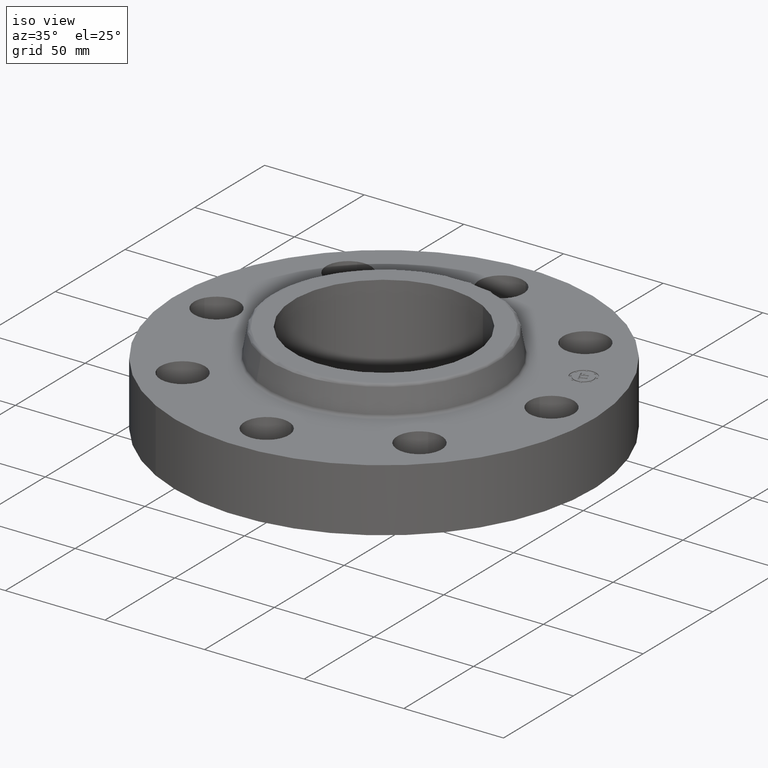
[diagram: clean part render]
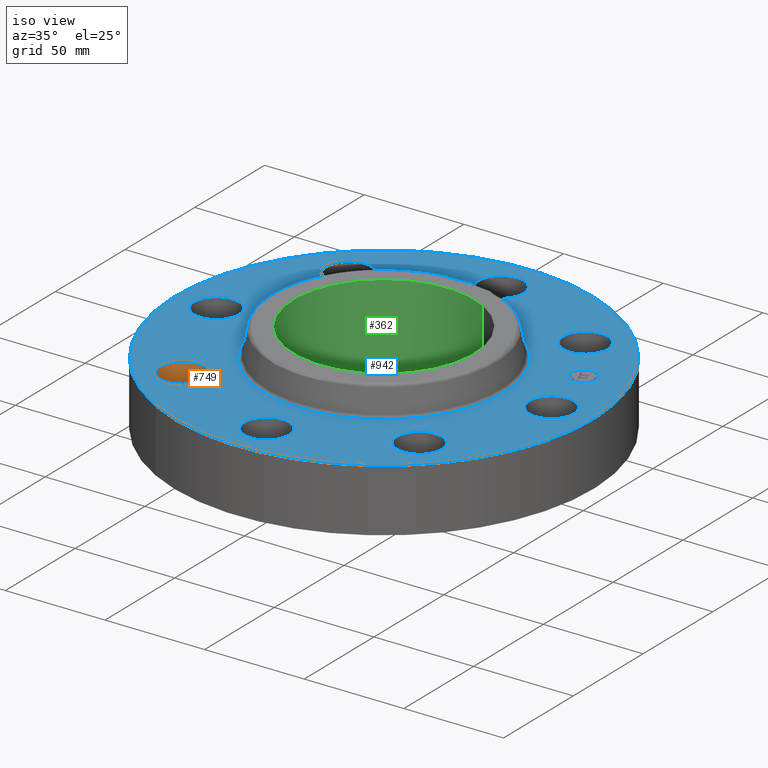
[diagram: same view with three faces highlighted in distinct colors, each labeled with its STEP entity id]
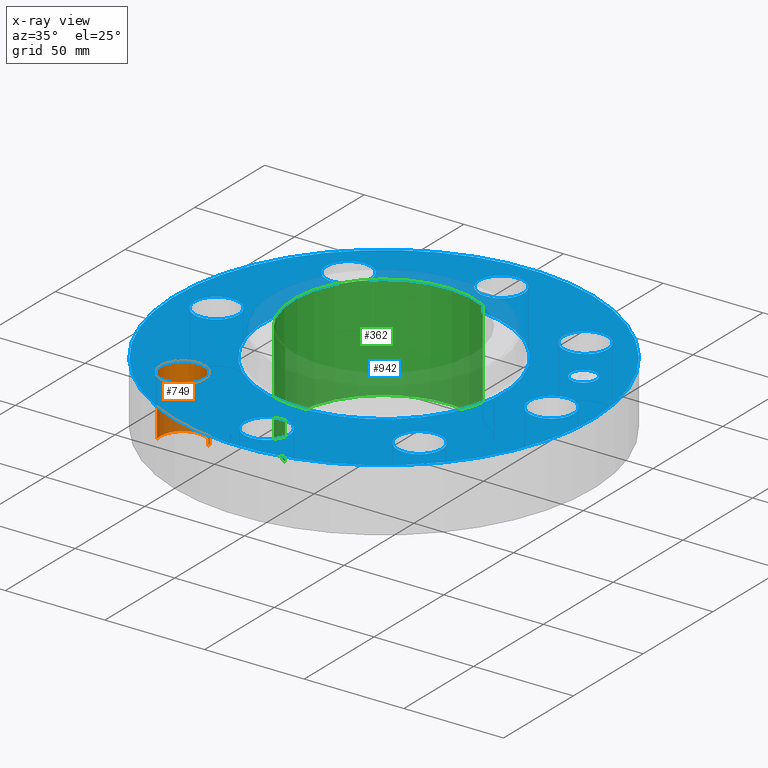
[diagram: x-ray of the same camera — body ghosted, the three highlighted faces saturated]
A machine part, iso view with three faces highlighted in distinct colors.
The next image is the same camera in x-ray (body ghosted, the three faces saturated) — at least one of them is partly hidden behind the body in this view.
Their STEP definitions:

[orange] entity #749 — the highlighted cylindrical surface (edge-blend (fillet) strip) has radius 11.176 mm, axis along (-0, 0, -1).
#498=AXIS2_PLACEMENT_3D('Circle Axis2P3D',#496,#497,$) ;
#710=AXIS2_PLACEMENT_3D('Cylinder Axis2P3D',#707,#708,#709) ;
#740=AXIS2_PLACEMENT_3D('Circle Axis2P3D',#738,#739,$) ;
#491=CARTESIAN_POINT('Vertex',(-1.91832160854,-2.21664605203,0.)) ;
#493=CARTESIAN_POINT('Vertex',(-2.76272528293,-2.46440083944,0.)) ;
#496=CARTESIAN_POINT('Axis2P3D Location',(-2.34052344574,-2.34052344574,0.)) ;
#707=CARTESIAN_POINT('Axis2P3D Location',(-2.34052344574,-2.34052344574,1.24606299213)) ;
#712=CARTESIAN_POINT('Line Origine',(-1.91832160854,-2.21664605203,0.625000000003)) ;
#716=CARTESIAN_POINT('Vertex',(-1.91832160854,-2.21664605203,1.25000000001)) ;
#719=CARTESIAN_POINT('Line Origine',(-2.76272528293,-2.46440083944,0.625000000003)) ;
#723=CARTESIAN_POINT('Vertex',(-2.76272528293,-2.46440083944,1.25000000001)) ;
#738=CARTESIAN_POINT('Axis2P3D Location',(-2.34052344574,-2.34052344574,1.25000000001)) ;
#497=DIRECTION('Axis2P3D Direction',(0.,0.,-0.0393700787402)) ;
#708=DIRECTION('Axis2P3D Direction',(-0.,0.,-0.0393700787402)) ;
#709=DIRECTION('Axis2P3D XDirection',(-0.0377775444876,-0.0110842335096,0.)) ;
#713=DIRECTION('Vector Direction',(0.,0.,-0.0393700787402)) ;
#720=DIRECTION('Vector Direction',(0.,0.,-0.0393700787402)) ;
#739=DIRECTION('Axis2P3D Direction',(-0.,0.,-0.0393700787402)) ;
#714=VECTOR('Line Direction',#713,0.0393700787402) ;
#721=VECTOR('Line Direction',#720,0.0393700787402) ;
#744=ORIENTED_EDGE('',*,*,#725,.F.) ;
#745=ORIENTED_EDGE('',*,*,#500,.T.) ;
#746=ORIENTED_EDGE('',*,*,#718,.T.) ;
#747=ORIENTED_EDGE('',*,*,#742,.F.) ;
#749=ADVANCED_FACE('PartBody',(#748),#711,.F.) ;
#499=CIRCLE('generated circle',#498,0.440000000002) ;
#741=CIRCLE('generated circle',#740,0.440000000002) ;
#711=CYLINDRICAL_SURFACE('generated cylinder',#710,0.440000000002) ;
#500=EDGE_CURVE('',#494,#492,#499,.T.) ;
#718=EDGE_CURVE('',#492,#717,#715,.F.) ;
#725=EDGE_CURVE('',#494,#724,#722,.F.) ;
#742=EDGE_CURVE('',#724,#717,#741,.T.) ;
#743=EDGE_LOOP('',(#744,#745,#746,#747)) ;
#748=FACE_OUTER_BOUND('',#743,.T.) ;
#715=LINE('Line',#712,#714) ;
#722=LINE('Line',#719,#721) ;
#492=VERTEX_POINT('',#491) ;
#494=VERTEX_POINT('',#493) ;
#717=VERTEX_POINT('',#716) ;
#724=VERTEX_POINT('',#723) ;

[blue] entity #942 — the highlighted planar face has unit normal (0, 0, -1).
#65=AXIS2_PLACEMENT_3D('Circle Axis2P3D',#63,#64,$) ;
#82=AXIS2_PLACEMENT_3D('Circle Axis2P3D',#80,#81,$) ;
#115=AXIS2_PLACEMENT_3D('Circle Axis2P3D',#113,#114,$) ;
#139=AXIS2_PLACEMENT_3D('Circle Axis2P3D',#137,#138,$) ;
#156=AXIS2_PLACEMENT_3D('Circle Axis2P3D',#154,#155,$) ;
#191=AXIS2_PLACEMENT_3D('Circle Axis2P3D',#189,#190,$) ;
#599=AXIS2_PLACEMENT_3D('Circle Axis2P3D',#597,#598,$) ;
#611=AXIS2_PLACEMENT_3D('Circle Axis2P3D',#609,#610,$) ;
#642=AXIS2_PLACEMENT_3D('Circle Axis2P3D',#640,#641,$) ;
#654=AXIS2_PLACEMENT_3D('Circle Axis2P3D',#652,#653,$) ;
#685=AXIS2_PLACEMENT_3D('Circle Axis2P3D',#683,#684,$) ;
#697=AXIS2_PLACEMENT_3D('Circle Axis2P3D',#695,#696,$) ;
#728=AXIS2_PLACEMENT_3D('Circle Axis2P3D',#726,#727,$) ;
#740=AXIS2_PLACEMENT_3D('Circle Axis2P3D',#738,#739,$) ;
#771=AXIS2_PLACEMENT_3D('Circle Axis2P3D',#769,#770,$) ;
#783=AXIS2_PLACEMENT_3D('Circle Axis2P3D',#781,#782,$) ;
#814=AXIS2_PLACEMENT_3D('Circle Axis2P3D',#812,#813,$) ;
#826=AXIS2_PLACEMENT_3D('Circle Axis2P3D',#824,#825,$) ;
#857=AXIS2_PLACEMENT_3D('Circle Axis2P3D',#855,#856,$) ;
#869=AXIS2_PLACEMENT_3D('Circle Axis2P3D',#867,#868,$) ;
#882=AXIS2_PLACEMENT_3D('Plane Axis2P3D',#879,#880,#881) ;
#926=AXIS2_PLACEMENT_3D('Circle Axis2P3D',#924,#925,$) ;
#935=AXIS2_PLACEMENT_3D('Circle Axis2P3D',#933,#934,$) ;
#46=CARTESIAN_POINT('Vertex',(2.92386367278,0.210947236987,1.25000000001)) ;
#60=CARTESIAN_POINT('Vertex',(3.69613632725,-0.210947236987,1.25000000001)) ;
#63=CARTESIAN_POINT('Axis2P3D Location',(3.31000000001,0.,1.25000000001)) ;
#80=CARTESIAN_POINT('Axis2P3D Location',(3.31000000001,0.,1.25000000001)) ;
#110=CARTESIAN_POINT('Vertex',(-1.97763034675,-3.62002806781,1.25000000001)) ;
#113=CARTESIAN_POINT('Axis2P3D Location',(0.,0.,1.25000000001)) ;
#117=CARTESIAN_POINT('Vertex',(1.97763034675,3.62002806781,1.25000000001)) ;
#137=CARTESIAN_POINT('Axis2P3D Location',(0.,0.,1.25000000001)) ;
#154=CARTESIAN_POINT('Axis2P3D Location',(0.,0.,1.25000000001)) ;
#158=CARTESIAN_POINT('Vertex',(1.13161014174,2.07139847022,1.25000000001)) ;
#160=CARTESIAN_POINT('Vertex',(-1.13161014174,-2.07139847022,1.25000000001)) ;
#189=CARTESIAN_POINT('Axis2P3D Location',(0.,0.,1.25000000001)) ;
#587=CARTESIAN_POINT('Vertex',(-2.21664605203,1.91832160854,1.25000000001)) ;
#594=CARTESIAN_POINT('Vertex',(-2.46440083944,2.76272528293,1.25000000001)) ;
#597=CARTESIAN_POINT('Axis2P3D Location',(-2.34052344574,2.34052344574,1.25000000001)) ;
#609=CARTESIAN_POINT('Axis2P3D Location',(-2.34052344574,2.34052344574,1.25000000001)) ;
#630=CARTESIAN_POINT('Vertex',(0.210947236987,-2.92386367278,1.25000000001)) ;
#637=CARTESIAN_POINT('Vertex',(-0.210947236987,-3.69613632725,1.25000000001)) ;
#640=CARTESIAN_POINT('Axis2P3D Location',(-3.56803423843E-016,-3.31000000001,1.25000000001)) ;
#652=CARTESIAN_POINT('Axis2P3D Location',(-3.56803423843E-016,-3.31000000001,1.25000000001)) ;
#673=CARTESIAN_POINT('Vertex',(-0.210947236987,2.92386367278,1.25000000001)) ;
#680=CARTESIAN_POINT('Vertex',(0.210947236987,3.69613632725,1.25000000001)) ;
#683=CARTESIAN_POINT('Axis2P3D Location',(-6.08037135779E-016,3.31000000001,1.25000000001)) ;
#695=CARTESIAN_POINT('Axis2P3D Location',(-6.08037135779E-016,3.31000000001,1.25000000001)) ;
#716=CARTESIAN_POINT('Vertex',(-1.91832160854,-2.21664605203,1.25000000001)) ;
#723=CARTESIAN_POINT('Vertex',(-2.76272528293,-2.46440083944,1.25000000001)) ;
#726=CARTESIAN_POINT('Axis2P3D Location',(-2.34052344574,-2.34052344574,1.25000000001)) ;
#738=CARTESIAN_POINT('Axis2P3D Location',(-2.34052344574,-2.34052344574,1.25000000001)) ;
#759=CARTESIAN_POINT('Vertex',(1.91832160854,2.21664605203,1.25000000001)) ;
#766=CARTESIAN_POINT('Vertex',(2.76272528293,2.46440083944,1.25000000001)) ;
#769=CARTESIAN_POINT('Axis2P3D Location',(2.34052344574,2.34052344574,1.25000000001)) ;
#781=CARTESIAN_POINT('Axis2P3D Location',(2.34052344574,2.34052344574,1.25000000001)) ;
#802=CARTESIAN_POINT('Vertex',(-2.92386367278,-0.210947236987,1.25000000001)) ;
#809=CARTESIAN_POINT('Vertex',(-3.69613632725,0.210947236987,1.25000000001)) ;
#812=CARTESIAN_POINT('Axis2P3D Location',(-3.31000000001,-4.05358090519E-016,1.25000000001)) ;
#824=CARTESIAN_POINT('Axis2P3D Location',(-3.31000000001,-4.05358090519E-016,1.25000000001)) ;
#845=CARTESIAN_POINT('Vertex',(2.21664605203,-1.91832160854,1.25000000001)) ;
#852=CARTESIAN_POINT('Vertex',(2.46440083944,-2.76272528293,1.25000000001)) ;
#855=CARTESIAN_POINT('Axis2P3D Location',(2.34052344574,-2.34052344574,1.25000000001)) ;
#867=CARTESIAN_POINT('Axis2P3D Location',(2.34052344574,-2.34052344574,1.25000000001)) ;
#879=CARTESIAN_POINT('Axis2P3D Location',(0.,4.12500000002,1.25000000001)) ;
#924=CARTESIAN_POINT('Axis2P3D Location',(3.05804125262,1.26668216113,1.25000000001)) ;
#928=CARTESIAN_POINT('Vertex',(2.96332710311,1.49534234543,1.25000000001)) ;
#930=CARTESIAN_POINT('Vertex',(3.15275540214,1.03802197684,1.25000000001)) ;
#933=CARTESIAN_POINT('Axis2P3D Location',(3.05804125262,1.26668216113,1.25000000001)) ;
#64=DIRECTION('Axis2P3D Direction',(0.,-0.,-0.0393700787402)) ;
#81=DIRECTION('Axis2P3D Direction',(0.,-0.,-0.0393700787402)) ;
#114=DIRECTION('Axis2P3D Direction',(0.,0.,-0.0393700787402)) ;
#138=DIRECTION('Axis2P3D Direction',(0.,0.,-0.0393700787402)) ;
#155=DIRECTION('Axis2P3D Direction',(0.,0.,-0.0393700787402)) ;
#190=DIRECTION('Axis2P3D Direction',(0.,0.,-0.0393700787402)) ;
#598=DIRECTION('Axis2P3D Direction',(0.,0.,-0.0393700787402)) ;
#610=DIRECTION('Axis2P3D Direction',(0.,0.,-0.0393700787402)) ;
#641=DIRECTION('Axis2P3D Direction',(0.,-0.,-0.0393700787402)) ;
#653=DIRECTION('Axis2P3D Direction',(0.,-0.,-0.0393700787402)) ;
#684=DIRECTION('Axis2P3D Direction',(0.,0.,-0.0393700787402)) ;
#696=DIRECTION('Axis2P3D Direction',(0.,0.,-0.0393700787402)) ;
#727=DIRECTION('Axis2P3D Direction',(-0.,0.,-0.0393700787402)) ;
#739=DIRECTION('Axis2P3D Direction',(-0.,0.,-0.0393700787402)) ;
#770=DIRECTION('Axis2P3D Direction',(0.,0.,-0.0393700787402)) ;
#782=DIRECTION('Axis2P3D Direction',(0.,0.,-0.0393700787402)) ;
#813=DIRECTION('Axis2P3D Direction',(-0.,0.,-0.0393700787402)) ;
#825=DIRECTION('Axis2P3D Direction',(-0.,0.,-0.0393700787402)) ;
#856=DIRECTION('Axis2P3D Direction',(0.,-0.,-0.0393700787402)) ;
#868=DIRECTION('Axis2P3D Direction',(0.,-0.,-0.0393700787402)) ;
#880=DIRECTION('Axis2P3D Direction',(0.,0.,-0.0393700787402)) ;
#881=DIRECTION('Axis2P3D XDirection',(0.0393700787402,0.,0.)) ;
#925=DIRECTION('Axis2P3D Direction',(0.,0.,-0.0393700787402)) ;
#934=DIRECTION('Axis2P3D Direction',(0.,0.,-0.0393700787402)) ;
#885=ORIENTED_EDGE('',*,*,#141,.F.) ;
#886=ORIENTED_EDGE('',*,*,#119,.F.) ;
#889=ORIENTED_EDGE('',*,*,#67,.T.) ;
#890=ORIENTED_EDGE('',*,*,#84,.T.) ;
#893=ORIENTED_EDGE('',*,*,#193,.T.) ;
#894=ORIENTED_EDGE('',*,*,#162,.T.) ;
#897=ORIENTED_EDGE('',*,*,#871,.T.) ;
#898=ORIENTED_EDGE('',*,*,#859,.T.) ;
#901=ORIENTED_EDGE('',*,*,#656,.T.) ;
#902=ORIENTED_EDGE('',*,*,#644,.T.) ;
#905=ORIENTED_EDGE('',*,*,#742,.T.) ;
#906=ORIENTED_EDGE('',*,*,#730,.T.) ;
#909=ORIENTED_EDGE('',*,*,#828,.T.) ;
#910=ORIENTED_EDGE('',*,*,#816,.T.) ;
#913=ORIENTED_EDGE('',*,*,#613,.T.) ;
#914=ORIENTED_EDGE('',*,*,#601,.T.) ;
#917=ORIENTED_EDGE('',*,*,#699,.T.) ;
#918=ORIENTED_EDGE('',*,*,#687,.T.) ;
#921=ORIENTED_EDGE('',*,*,#785,.T.) ;
#922=ORIENTED_EDGE('',*,*,#773,.T.) ;
#939=ORIENTED_EDGE('',*,*,#932,.T.) ;
#940=ORIENTED_EDGE('',*,*,#937,.T.) ;
#891=FACE_BOUND('',#888,.T.) ;
#895=FACE_BOUND('',#892,.T.) ;
#899=FACE_BOUND('',#896,.T.) ;
#903=FACE_BOUND('',#900,.T.) ;
#907=FACE_BOUND('',#904,.T.) ;
#911=FACE_BOUND('',#908,.T.) ;
#915=FACE_BOUND('',#912,.T.) ;
#919=FACE_BOUND('',#916,.T.) ;
#923=FACE_BOUND('',#920,.T.) ;
#941=FACE_BOUND('',#938,.T.) ;
#942=ADVANCED_FACE('PartBody',(#887,#891,#895,#899,#903,#907,#911,#915,#919,#923,#941),#883,.F.) ;
#66=CIRCLE('generated circle',#65,0.440000000002) ;
#83=CIRCLE('generated circle',#82,0.440000000002) ;
#116=CIRCLE('generated circle',#115,4.12500000002) ;
#140=CIRCLE('generated circle',#139,4.12500000002) ;
#157=CIRCLE('generated circle',#156,2.36034597788) ;
#192=CIRCLE('generated circle',#191,2.36034597788) ;
#600=CIRCLE('generated circle',#599,0.440000000002) ;
#612=CIRCLE('generated circle',#611,0.440000000002) ;
#643=CIRCLE('generated circle',#642,0.440000000002) ;
#655=CIRCLE('generated circle',#654,0.440000000002) ;
#686=CIRCLE('generated circle',#685,0.440000000002) ;
#698=CIRCLE('generated circle',#697,0.440000000002) ;
#729=CIRCLE('generated circle',#728,0.440000000002) ;
#741=CIRCLE('generated circle',#740,0.440000000002) ;
#772=CIRCLE('generated circle',#771,0.440000000002) ;
#784=CIRCLE('generated circle',#783,0.440000000002) ;
#815=CIRCLE('generated circle',#814,0.440000000002) ;
#827=CIRCLE('generated circle',#826,0.440000000002) ;
#858=CIRCLE('generated circle',#857,0.440000000002) ;
#870=CIRCLE('generated circle',#869,0.440000000002) ;
#927=CIRCLE('generated circle',#926,0.247500000001) ;
#936=CIRCLE('generated circle',#935,0.247500000001) ;
#67=EDGE_CURVE('',#47,#61,#66,.T.) ;
#84=EDGE_CURVE('',#61,#47,#83,.T.) ;
#119=EDGE_CURVE('',#111,#118,#116,.T.) ;
#141=EDGE_CURVE('',#118,#111,#140,.T.) ;
#162=EDGE_CURVE('',#159,#161,#157,.T.) ;
#193=EDGE_CURVE('',#161,#159,#192,.T.) ;
#601=EDGE_CURVE('',#588,#595,#600,.T.) ;
#613=EDGE_CURVE('',#595,#588,#612,.T.) ;
#644=EDGE_CURVE('',#631,#638,#643,.T.) ;
#656=EDGE_CURVE('',#638,#631,#655,.T.) ;
#687=EDGE_CURVE('',#674,#681,#686,.T.) ;
#699=EDGE_CURVE('',#681,#674,#698,.T.) ;
#730=EDGE_CURVE('',#717,#724,#729,.T.) ;
#742=EDGE_CURVE('',#724,#717,#741,.T.) ;
#773=EDGE_CURVE('',#760,#767,#772,.T.) ;
#785=EDGE_CURVE('',#767,#760,#784,.T.) ;
#816=EDGE_CURVE('',#803,#810,#815,.T.) ;
#828=EDGE_CURVE('',#810,#803,#827,.T.) ;
#859=EDGE_CURVE('',#846,#853,#858,.T.) ;
#871=EDGE_CURVE('',#853,#846,#870,.T.) ;
#932=EDGE_CURVE('',#929,#931,#927,.T.) ;
#937=EDGE_CURVE('',#931,#929,#936,.T.) ;
#884=EDGE_LOOP('',(#885,#886)) ;
#888=EDGE_LOOP('',(#889,#890)) ;
#892=EDGE_LOOP('',(#893,#894)) ;
#896=EDGE_LOOP('',(#897,#898)) ;
#900=EDGE_LOOP('',(#901,#902)) ;
#904=EDGE_LOOP('',(#905,#906)) ;
#908=EDGE_LOOP('',(#909,#910)) ;
#912=EDGE_LOOP('',(#913,#914)) ;
#916=EDGE_LOOP('',(#917,#918)) ;
#920=EDGE_LOOP('',(#921,#922)) ;
#938=EDGE_LOOP('',(#939,#940)) ;
#887=FACE_OUTER_BOUND('',#884,.T.) ;
#883=PLANE('',#882) ;
#47=VERTEX_POINT('',#46) ;
#61=VERTEX_POINT('',#60) ;
#111=VERTEX_POINT('',#110) ;
#118=VERTEX_POINT('',#117) ;
#159=VERTEX_POINT('',#158) ;
#161=VERTEX_POINT('',#160) ;
#588=VERTEX_POINT('',#587) ;
#595=VERTEX_POINT('',#594) ;
#631=VERTEX_POINT('',#630) ;
#638=VERTEX_POINT('',#637) ;
#674=VERTEX_POINT('',#673) ;
#681=VERTEX_POINT('',#680) ;
#717=VERTEX_POINT('',#716) ;
#724=VERTEX_POINT('',#723) ;
#760=VERTEX_POINT('',#759) ;
#767=VERTEX_POINT('',#766) ;
#803=VERTEX_POINT('',#802) ;
#810=VERTEX_POINT('',#809) ;
#846=VERTEX_POINT('',#845) ;
#853=VERTEX_POINT('',#852) ;
#929=VERTEX_POINT('',#928) ;
#931=VERTEX_POINT('',#930) ;

[green] entity #362 — the highlighted cylindrical surface (partial cylindrical patch) has radius 45.339 mm, axis along (0, 0, -1).
#303=AXIS2_PLACEMENT_3D('Circle Axis2P3D',#301,#302,$) ;
#323=AXIS2_PLACEMENT_3D('Cylinder Axis2P3D',#320,#321,#322) ;
#353=AXIS2_PLACEMENT_3D('Circle Axis2P3D',#351,#352,$) ;
#301=CARTESIAN_POINT('Axis2P3D Location',(0.,0.,1.81000000001)) ;
#305=CARTESIAN_POINT('Vertex',(-0.855774586412,-1.56648487298,1.81000000001)) ;
#307=CARTESIAN_POINT('Vertex',(0.855774586412,1.56648487298,1.81000000001)) ;
#320=CARTESIAN_POINT('Axis2P3D Location',(0.,0.,0.780000000003)) ;
#325=CARTESIAN_POINT('Line Origine',(0.855774586412,1.56648487298,0.780000000003)) ;
#329=CARTESIAN_POINT('Vertex',(0.855774586412,1.56648487298,-0.250000000001)) ;
#336=CARTESIAN_POINT('Vertex',(-0.855774586412,-1.56648487298,-0.250000000001)) ;
#339=CARTESIAN_POINT('Line Origine',(-0.855774586412,-1.56648487298,0.780000000003)) ;
#351=CARTESIAN_POINT('Axis2P3D Location',(0.,0.,-0.250000000001)) ;
#302=DIRECTION('Axis2P3D Direction',(0.,0.,-0.0393700787402)) ;
#321=DIRECTION('Axis2P3D Direction',(0.,0.,-0.0393700787402)) ;
#322=DIRECTION('Axis2P3D XDirection',(-0.0188750212049,-0.0345504945626,0.)) ;
#326=DIRECTION('Vector Direction',(0.,0.,-0.0393700787402)) ;
#340=DIRECTION('Vector Direction',(0.,0.,-0.0393700787402)) ;
#352=DIRECTION('Axis2P3D Direction',(0.,0.,-0.0393700787402)) ;
#327=VECTOR('Line Direction',#326,0.0393700787402) ;
#341=VECTOR('Line Direction',#340,0.0393700787402) ;
#357=ORIENTED_EDGE('',*,*,#309,.F.) ;
#358=ORIENTED_EDGE('',*,*,#343,.T.) ;
#359=ORIENTED_EDGE('',*,*,#355,.T.) ;
#360=ORIENTED_EDGE('',*,*,#331,.F.) ;
#362=ADVANCED_FACE('PartBody',(#361),#324,.F.) ;
#304=CIRCLE('generated circle',#303,1.78500000001) ;
#354=CIRCLE('generated circle',#353,1.78500000001) ;
#324=CYLINDRICAL_SURFACE('generated cylinder',#323,1.78500000001) ;
#309=EDGE_CURVE('',#306,#308,#304,.T.) ;
#331=EDGE_CURVE('',#308,#330,#328,.T.) ;
#343=EDGE_CURVE('',#306,#337,#342,.T.) ;
#355=EDGE_CURVE('',#337,#330,#354,.T.) ;
#356=EDGE_LOOP('',(#357,#358,#359,#360)) ;
#361=FACE_OUTER_BOUND('',#356,.T.) ;
#328=LINE('Line',#325,#327) ;
#342=LINE('Line',#339,#341) ;
#306=VERTEX_POINT('',#305) ;
#308=VERTEX_POINT('',#307) ;
#330=VERTEX_POINT('',#329) ;
#337=VERTEX_POINT('',#336) ;